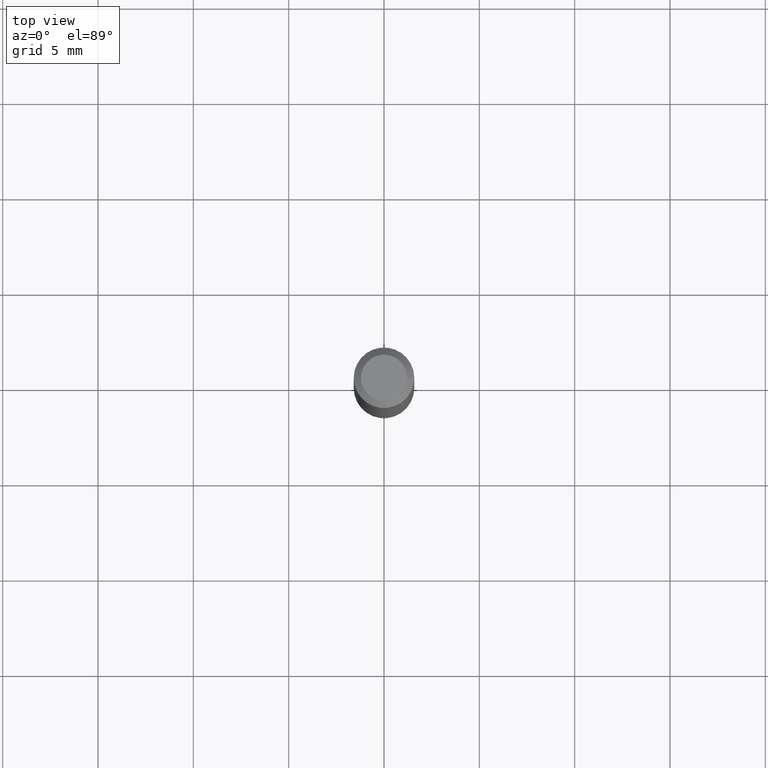
[diagram: clean part render]
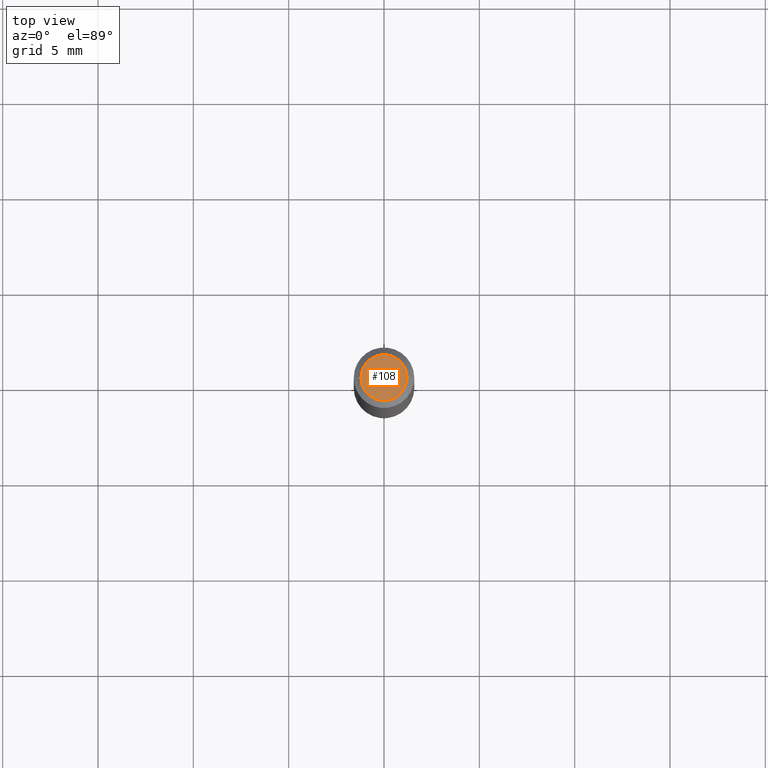
[diagram: same view with one face highlighted and labeled with its STEP entity id]
A machine part, top view. The second image highlights one B-rep face of the part: STEP entity #108.
In plain terms, the highlighted planar face has unit normal (0, -0, -1).
Its self-contained STEP definition (entity closure, byte-faithful):
#52 = CARTESIAN_POINT ( 'NONE',  ( 1.278896122067429216E-44, -1.825924719719875646E-30, -5.229656247639779395E-16 ) ) ;
#53 = AXIS2_PLACEMENT_3D ( 'NONE', #107, #214, #249 ) ;
#68 = EDGE_CURVE ( 'NONE', #459, #380, #383, .T. ) ;
#80 = CIRCLE ( 'NONE', #332, 0.04749999999999999362 ) ;
#86 = AXIS2_PLACEMENT_3D ( 'NONE', #204, #275, #165 ) ;
#107 = CARTESIAN_POINT ( 'NONE',  ( 1.278896122067429216E-44, -1.825924719719875646E-30, -5.229656247639779395E-16 ) ) ;
#108 = ADVANCED_FACE ( 'NONE', ( #381 ), #238, .F. ) ;
#146 = ORIENTED_EDGE ( 'NONE', *, *, #338, .T. ) ;
#165 = DIRECTION ( 'NONE',  ( -1.000000000000000000, 6.982962677686265922E-15, -4.876176775795935793E-29 ) ) ;
#167 = CARTESIAN_POINT ( 'NONE',  ( 0.04749999999999999362, -4.035134999187587991E-16, -5.229656247639753758E-16 ) ) ;
#204 = CARTESIAN_POINT ( 'NONE',  ( 3.316907271900976096E-16, 0.04749999999999999362, -4.273281759770383169E-16 ) ) ;
#214 = DIRECTION ( 'NONE',  ( -2.445468806185136597E-29, 3.491481338843145583E-15, 1.000000000000000000 ) ) ;
#238 = PLANE ( 'NONE',  #86 ) ;
#249 = DIRECTION ( 'NONE',  ( 1.000000000000000000, -6.982962677686267499E-15, 4.852736867747366768E-29 ) ) ;
#266 = DIRECTION ( 'NONE',  ( -2.445468806185136597E-29, 3.491481338843145583E-15, 1.000000000000000000 ) ) ;
#275 = DIRECTION ( 'NONE',  ( 2.438088387897960049E-29, -3.491481338843145188E-15, -1.000000000000000000 ) ) ;
#332 = AXIS2_PLACEMENT_3D ( 'NONE', #52, #266, #412 ) ;
#338 = EDGE_CURVE ( 'NONE', #380, #459, #80, .T. ) ;
#346 = CARTESIAN_POINT ( 'NONE',  ( -0.04749999999999999362, 3.578768372314202124E-16, -5.229656247639803061E-16 ) ) ;
#380 = VERTEX_POINT ( 'NONE', #346 ) ;
#381 = FACE_OUTER_BOUND ( 'NONE', #397, .T. ) ;
#383 = CIRCLE ( 'NONE', #53, 0.04749999999999999362 ) ;
#397 = EDGE_LOOP ( 'NONE', ( #146, #461 ) ) ;
#412 = DIRECTION ( 'NONE',  ( 1.000000000000000000, -6.982962677686267499E-15, 4.852736867747366768E-29 ) ) ;
#459 = VERTEX_POINT ( 'NONE', #167 ) ;
#461 = ORIENTED_EDGE ( 'NONE', *, *, #68, .T. ) ;